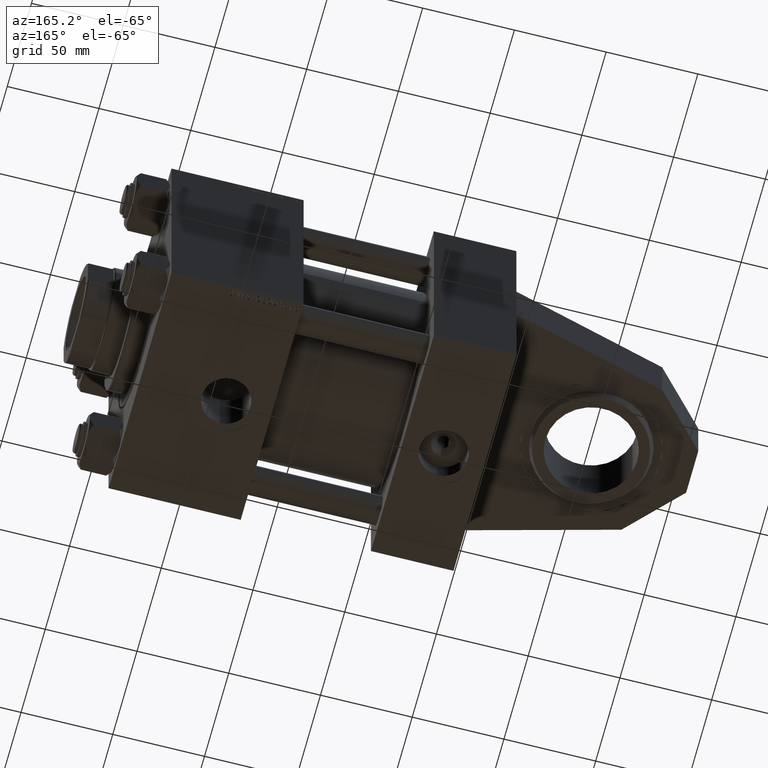
[diagram: clean part render]
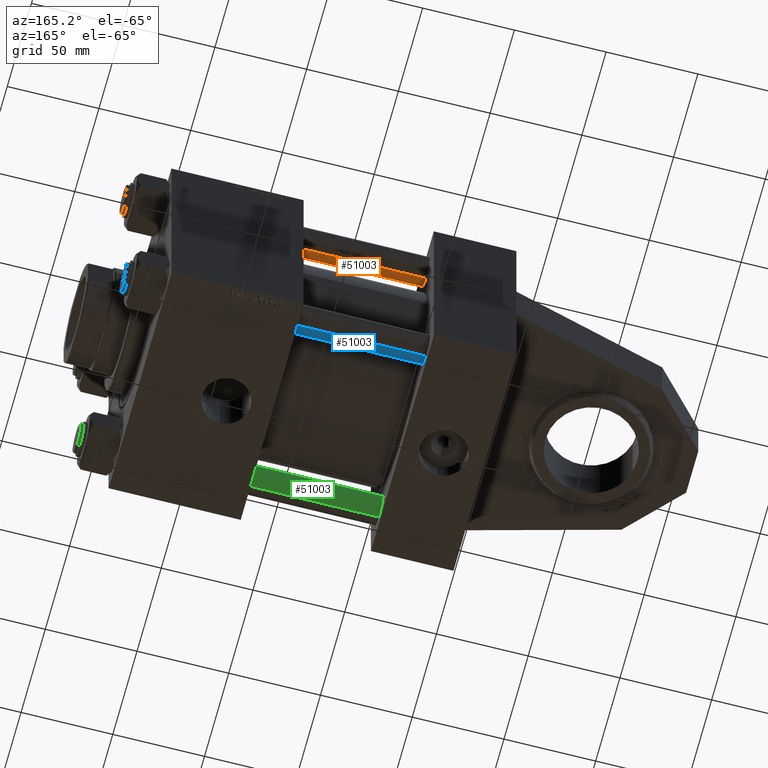
[diagram: same view with three faces highlighted in distinct colors, each labeled with its STEP entity id]
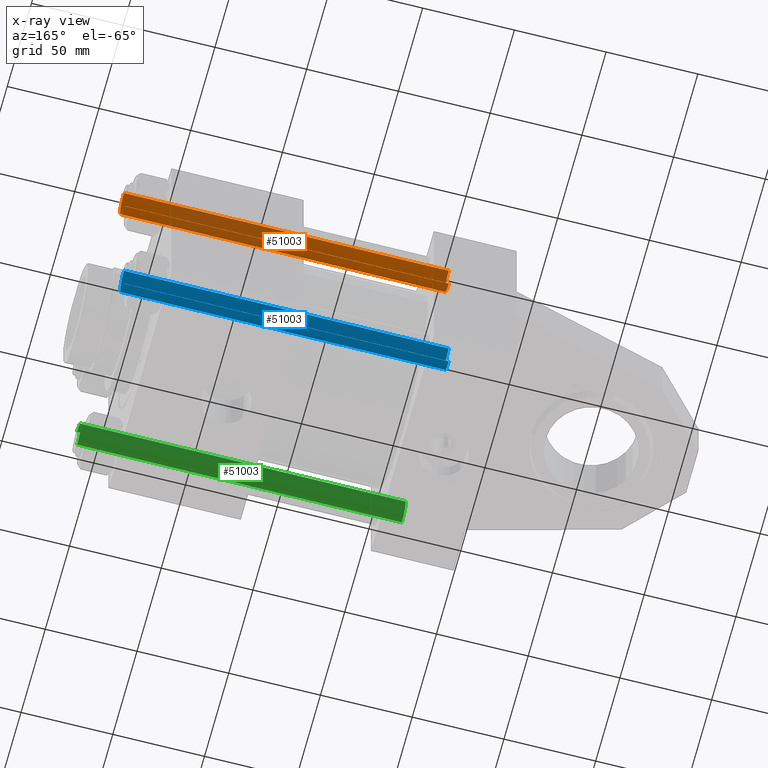
[diagram: x-ray of the same camera — body ghosted, the three highlighted faces saturated]
A machine part, auxiliary view with three faces highlighted in distinct colors.
The next image is the same camera in x-ray (body ghosted, the three faces saturated) — at least one of them is partly hidden behind the body in this view.
Their STEP definitions:

[orange] entity #51003 — the highlighted cylindrical surface (edge-blend (fillet) strip) has radius 8 mm, axis along (1, 0, 0).
#366 = CARTESIAN_POINT ( 'NONE',  ( 0.000000000000000000, 0.000000000000000000, 177.5000000000000284 ) ) ;
#5282 = VECTOR ( 'NONE', #6714, 1000.000000000000000 ) ;
#6714 = DIRECTION ( 'NONE',  ( -0.000000000000000000, -0.000000000000000000, -1.000000000000000000 ) ) ;
#8430 = VECTOR ( 'NONE', #45930, 1000.000000000000000 ) ;
#9057 = ORIENTED_EDGE ( 'NONE', *, *, #45813, .F. ) ;
#9200 = CARTESIAN_POINT ( 'NONE',  ( 0.000000000000000000, 0.000000000000000000, 0.4999999999999449329 ) ) ;
#12612 = CIRCLE ( 'NONE', #34697, 8.000000000000000000 ) ;
#12873 = ORIENTED_EDGE ( 'NONE', *, *, #36100, .T. ) ;
#13666 = EDGE_CURVE ( 'NONE', #43878, #44644, #42807, .T. ) ;
#15851 = ORIENTED_EDGE ( 'NONE', *, *, #13666, .T. ) ;
#16621 = DIRECTION ( 'NONE',  ( 0.000000000000000000, 0.000000000000000000, -1.000000000000000000 ) ) ;
#17459 = DIRECTION ( 'NONE',  ( -0.000000000000000000, -0.000000000000000000, 1.000000000000000000 ) ) ;
#19852 = AXIS2_PLACEMENT_3D ( 'NONE', #366, #16621, #46166 ) ;
#21375 = CARTESIAN_POINT ( 'NONE',  ( 8.000000000000000000, 9.797174393178825657E-16, 0.4999999999999449329 ) ) ;
#21939 = CARTESIAN_POINT ( 'NONE',  ( 8.000000000000000000, 9.797174393178825657E-16, 178.0000000000000000 ) ) ;
#22927 = AXIS2_PLACEMENT_3D ( 'NONE', #51844, #23878, #27331 ) ;
#23878 = DIRECTION ( 'NONE',  ( -0.000000000000000000, -0.000000000000000000, -1.000000000000000000 ) ) ;
#27331 = DIRECTION ( 'NONE',  ( -1.000000000000000000, 0.000000000000000000, 0.000000000000000000 ) ) ;
#27340 = ORIENTED_EDGE ( 'NONE', *, *, #38965, .T. ) ;
#32324 = VERTEX_POINT ( 'NONE', #46626 ) ;
#33067 = VERTEX_POINT ( 'NONE', #21375 ) ;
#33716 = DIRECTION ( 'NONE',  ( 1.000000000000000000, 0.000000000000000000, 0.000000000000000000 ) ) ;
#34697 = AXIS2_PLACEMENT_3D ( 'NONE', #9200, #17459, #33716 ) ;
#35280 = CARTESIAN_POINT ( 'NONE',  ( 8.000000000000000000, 9.797174393178825657E-16, 177.5000000000000284 ) ) ;
#36100 = EDGE_CURVE ( 'NONE', #44644, #32324, #43230, .T. ) ;
#37218 = EDGE_LOOP ( 'NONE', ( #9057, #15851, #12873, #27340 ) ) ;
#38965 = EDGE_CURVE ( 'NONE', #32324, #33067, #12612, .T. ) ;
#42807 = CIRCLE ( 'NONE', #19852, 8.000000000000000000 ) ;
#43230 = LINE ( 'NONE', #47223, #5282 ) ;
#43878 = VERTEX_POINT ( 'NONE', #35280 ) ;
#44115 = FACE_OUTER_BOUND ( 'NONE', #37218, .T. ) ;
#44644 = VERTEX_POINT ( 'NONE', #47070 ) ;
#45413 = LINE ( 'NONE', #21939, #8430 ) ;
#45813 = EDGE_CURVE ( 'NONE', #43878, #33067, #45413, .T. ) ;
#45930 = DIRECTION ( 'NONE',  ( -0.000000000000000000, -0.000000000000000000, -1.000000000000000000 ) ) ;
#46166 = DIRECTION ( 'NONE',  ( 1.000000000000000000, 0.000000000000000000, 0.000000000000000000 ) ) ;
#46626 = CARTESIAN_POINT ( 'NONE',  ( -8.000000000000000000, 0.000000000000000000, 0.4999999999999449329 ) ) ;
#47070 = CARTESIAN_POINT ( 'NONE',  ( -8.000000000000000000, 0.000000000000000000, 177.5000000000000284 ) ) ;
#47223 = CARTESIAN_POINT ( 'NONE',  ( -8.000000000000000000, 0.000000000000000000, 178.0000000000000000 ) ) ;
#51003 = ADVANCED_FACE ( 'NONE', ( #44115 ), #52107, .T. ) ;
#51844 = CARTESIAN_POINT ( 'NONE',  ( 0.000000000000000000, 0.000000000000000000, 178.0000000000000000 ) ) ;
#52107 = CYLINDRICAL_SURFACE ( 'NONE', #22927, 8.000000000000000000 ) ;

[blue] entity #51003 — the highlighted cylindrical surface (edge-blend (fillet) strip) has radius 8 mm, axis along (-1, -0, 0).
#366 = CARTESIAN_POINT ( 'NONE',  ( 0.000000000000000000, 0.000000000000000000, 177.5000000000000284 ) ) ;
#5282 = VECTOR ( 'NONE', #6714, 1000.000000000000000 ) ;
#6714 = DIRECTION ( 'NONE',  ( -0.000000000000000000, -0.000000000000000000, -1.000000000000000000 ) ) ;
#8430 = VECTOR ( 'NONE', #45930, 1000.000000000000000 ) ;
#9057 = ORIENTED_EDGE ( 'NONE', *, *, #45813, .F. ) ;
#9200 = CARTESIAN_POINT ( 'NONE',  ( 0.000000000000000000, 0.000000000000000000, 0.4999999999999449329 ) ) ;
#12612 = CIRCLE ( 'NONE', #34697, 8.000000000000000000 ) ;
#12873 = ORIENTED_EDGE ( 'NONE', *, *, #36100, .T. ) ;
#13666 = EDGE_CURVE ( 'NONE', #43878, #44644, #42807, .T. ) ;
#15851 = ORIENTED_EDGE ( 'NONE', *, *, #13666, .T. ) ;
#16621 = DIRECTION ( 'NONE',  ( 0.000000000000000000, 0.000000000000000000, -1.000000000000000000 ) ) ;
#17459 = DIRECTION ( 'NONE',  ( -0.000000000000000000, -0.000000000000000000, 1.000000000000000000 ) ) ;
#19852 = AXIS2_PLACEMENT_3D ( 'NONE', #366, #16621, #46166 ) ;
#21375 = CARTESIAN_POINT ( 'NONE',  ( 8.000000000000000000, 9.797174393178825657E-16, 0.4999999999999449329 ) ) ;
#21939 = CARTESIAN_POINT ( 'NONE',  ( 8.000000000000000000, 9.797174393178825657E-16, 178.0000000000000000 ) ) ;
#22927 = AXIS2_PLACEMENT_3D ( 'NONE', #51844, #23878, #27331 ) ;
#23878 = DIRECTION ( 'NONE',  ( -0.000000000000000000, -0.000000000000000000, -1.000000000000000000 ) ) ;
#27331 = DIRECTION ( 'NONE',  ( -1.000000000000000000, 0.000000000000000000, 0.000000000000000000 ) ) ;
#27340 = ORIENTED_EDGE ( 'NONE', *, *, #38965, .T. ) ;
#32324 = VERTEX_POINT ( 'NONE', #46626 ) ;
#33067 = VERTEX_POINT ( 'NONE', #21375 ) ;
#33716 = DIRECTION ( 'NONE',  ( 1.000000000000000000, 0.000000000000000000, 0.000000000000000000 ) ) ;
#34697 = AXIS2_PLACEMENT_3D ( 'NONE', #9200, #17459, #33716 ) ;
#35280 = CARTESIAN_POINT ( 'NONE',  ( 8.000000000000000000, 9.797174393178825657E-16, 177.5000000000000284 ) ) ;
#36100 = EDGE_CURVE ( 'NONE', #44644, #32324, #43230, .T. ) ;
#37218 = EDGE_LOOP ( 'NONE', ( #9057, #15851, #12873, #27340 ) ) ;
#38965 = EDGE_CURVE ( 'NONE', #32324, #33067, #12612, .T. ) ;
#42807 = CIRCLE ( 'NONE', #19852, 8.000000000000000000 ) ;
#43230 = LINE ( 'NONE', #47223, #5282 ) ;
#43878 = VERTEX_POINT ( 'NONE', #35280 ) ;
#44115 = FACE_OUTER_BOUND ( 'NONE', #37218, .T. ) ;
#44644 = VERTEX_POINT ( 'NONE', #47070 ) ;
#45413 = LINE ( 'NONE', #21939, #8430 ) ;
#45813 = EDGE_CURVE ( 'NONE', #43878, #33067, #45413, .T. ) ;
#45930 = DIRECTION ( 'NONE',  ( -0.000000000000000000, -0.000000000000000000, -1.000000000000000000 ) ) ;
#46166 = DIRECTION ( 'NONE',  ( 1.000000000000000000, 0.000000000000000000, 0.000000000000000000 ) ) ;
#46626 = CARTESIAN_POINT ( 'NONE',  ( -8.000000000000000000, 0.000000000000000000, 0.4999999999999449329 ) ) ;
#47070 = CARTESIAN_POINT ( 'NONE',  ( -8.000000000000000000, 0.000000000000000000, 177.5000000000000284 ) ) ;
#47223 = CARTESIAN_POINT ( 'NONE',  ( -8.000000000000000000, 0.000000000000000000, 178.0000000000000000 ) ) ;
#51003 = ADVANCED_FACE ( 'NONE', ( #44115 ), #52107, .T. ) ;
#51844 = CARTESIAN_POINT ( 'NONE',  ( 0.000000000000000000, 0.000000000000000000, 178.0000000000000000 ) ) ;
#52107 = CYLINDRICAL_SURFACE ( 'NONE', #22927, 8.000000000000000000 ) ;

[green] entity #51003 — the highlighted cylindrical surface (edge-blend (fillet) strip) has radius 8 mm, axis along (1, -0, -0).
#366 = CARTESIAN_POINT ( 'NONE',  ( 0.000000000000000000, 0.000000000000000000, 177.5000000000000284 ) ) ;
#5282 = VECTOR ( 'NONE', #6714, 1000.000000000000000 ) ;
#6714 = DIRECTION ( 'NONE',  ( -0.000000000000000000, -0.000000000000000000, -1.000000000000000000 ) ) ;
#8430 = VECTOR ( 'NONE', #45930, 1000.000000000000000 ) ;
#9057 = ORIENTED_EDGE ( 'NONE', *, *, #45813, .F. ) ;
#9200 = CARTESIAN_POINT ( 'NONE',  ( 0.000000000000000000, 0.000000000000000000, 0.4999999999999449329 ) ) ;
#12612 = CIRCLE ( 'NONE', #34697, 8.000000000000000000 ) ;
#12873 = ORIENTED_EDGE ( 'NONE', *, *, #36100, .T. ) ;
#13666 = EDGE_CURVE ( 'NONE', #43878, #44644, #42807, .T. ) ;
#15851 = ORIENTED_EDGE ( 'NONE', *, *, #13666, .T. ) ;
#16621 = DIRECTION ( 'NONE',  ( 0.000000000000000000, 0.000000000000000000, -1.000000000000000000 ) ) ;
#17459 = DIRECTION ( 'NONE',  ( -0.000000000000000000, -0.000000000000000000, 1.000000000000000000 ) ) ;
#19852 = AXIS2_PLACEMENT_3D ( 'NONE', #366, #16621, #46166 ) ;
#21375 = CARTESIAN_POINT ( 'NONE',  ( 8.000000000000000000, 9.797174393178825657E-16, 0.4999999999999449329 ) ) ;
#21939 = CARTESIAN_POINT ( 'NONE',  ( 8.000000000000000000, 9.797174393178825657E-16, 178.0000000000000000 ) ) ;
#22927 = AXIS2_PLACEMENT_3D ( 'NONE', #51844, #23878, #27331 ) ;
#23878 = DIRECTION ( 'NONE',  ( -0.000000000000000000, -0.000000000000000000, -1.000000000000000000 ) ) ;
#27331 = DIRECTION ( 'NONE',  ( -1.000000000000000000, 0.000000000000000000, 0.000000000000000000 ) ) ;
#27340 = ORIENTED_EDGE ( 'NONE', *, *, #38965, .T. ) ;
#32324 = VERTEX_POINT ( 'NONE', #46626 ) ;
#33067 = VERTEX_POINT ( 'NONE', #21375 ) ;
#33716 = DIRECTION ( 'NONE',  ( 1.000000000000000000, 0.000000000000000000, 0.000000000000000000 ) ) ;
#34697 = AXIS2_PLACEMENT_3D ( 'NONE', #9200, #17459, #33716 ) ;
#35280 = CARTESIAN_POINT ( 'NONE',  ( 8.000000000000000000, 9.797174393178825657E-16, 177.5000000000000284 ) ) ;
#36100 = EDGE_CURVE ( 'NONE', #44644, #32324, #43230, .T. ) ;
#37218 = EDGE_LOOP ( 'NONE', ( #9057, #15851, #12873, #27340 ) ) ;
#38965 = EDGE_CURVE ( 'NONE', #32324, #33067, #12612, .T. ) ;
#42807 = CIRCLE ( 'NONE', #19852, 8.000000000000000000 ) ;
#43230 = LINE ( 'NONE', #47223, #5282 ) ;
#43878 = VERTEX_POINT ( 'NONE', #35280 ) ;
#44115 = FACE_OUTER_BOUND ( 'NONE', #37218, .T. ) ;
#44644 = VERTEX_POINT ( 'NONE', #47070 ) ;
#45413 = LINE ( 'NONE', #21939, #8430 ) ;
#45813 = EDGE_CURVE ( 'NONE', #43878, #33067, #45413, .T. ) ;
#45930 = DIRECTION ( 'NONE',  ( -0.000000000000000000, -0.000000000000000000, -1.000000000000000000 ) ) ;
#46166 = DIRECTION ( 'NONE',  ( 1.000000000000000000, 0.000000000000000000, 0.000000000000000000 ) ) ;
#46626 = CARTESIAN_POINT ( 'NONE',  ( -8.000000000000000000, 0.000000000000000000, 0.4999999999999449329 ) ) ;
#47070 = CARTESIAN_POINT ( 'NONE',  ( -8.000000000000000000, 0.000000000000000000, 177.5000000000000284 ) ) ;
#47223 = CARTESIAN_POINT ( 'NONE',  ( -8.000000000000000000, 0.000000000000000000, 178.0000000000000000 ) ) ;
#51003 = ADVANCED_FACE ( 'NONE', ( #44115 ), #52107, .T. ) ;
#51844 = CARTESIAN_POINT ( 'NONE',  ( 0.000000000000000000, 0.000000000000000000, 178.0000000000000000 ) ) ;
#52107 = CYLINDRICAL_SURFACE ( 'NONE', #22927, 8.000000000000000000 ) ;